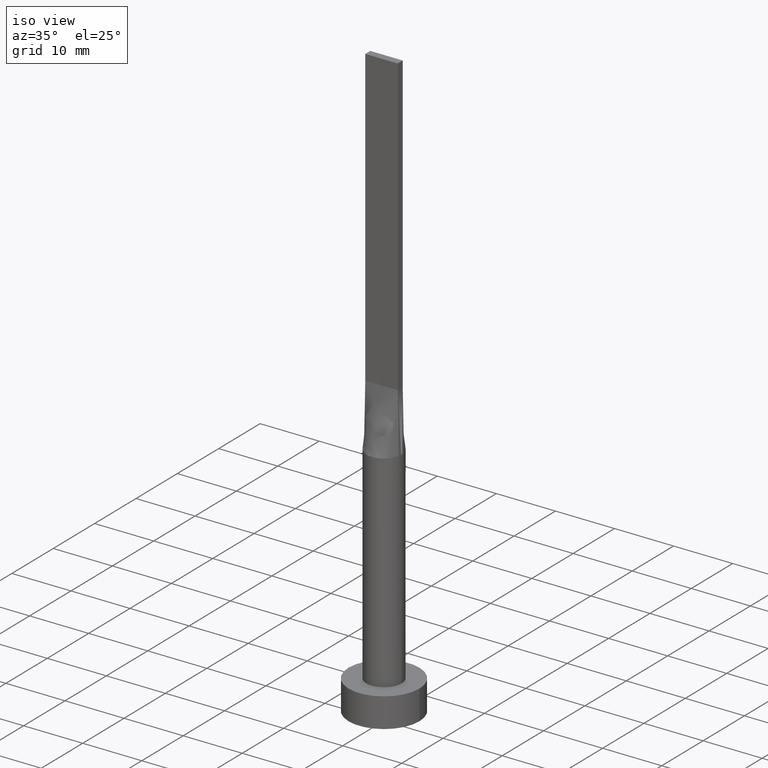
[diagram: clean part render]
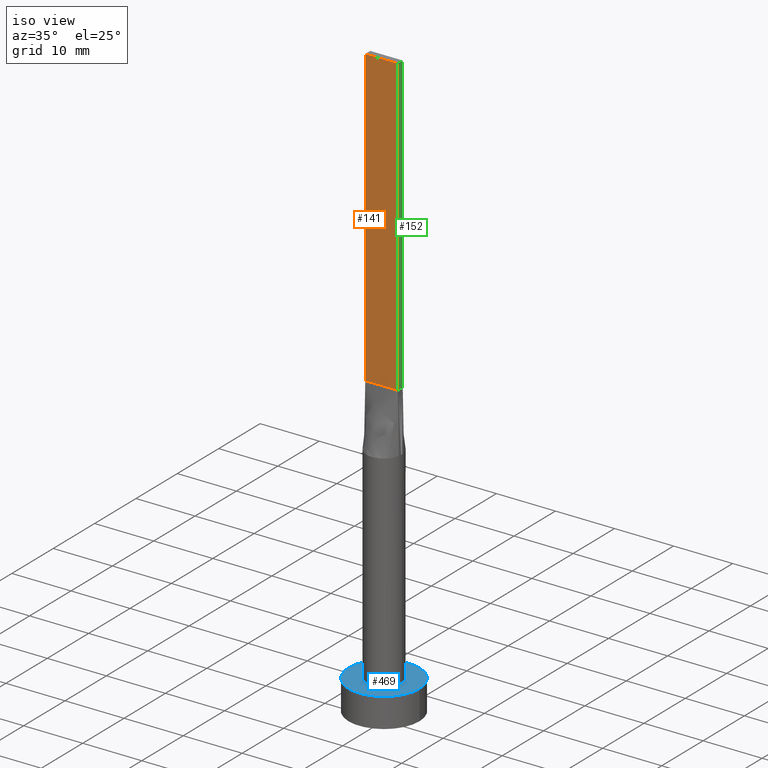
[diagram: same view with three faces highlighted in distinct colors, each labeled with its STEP entity id]
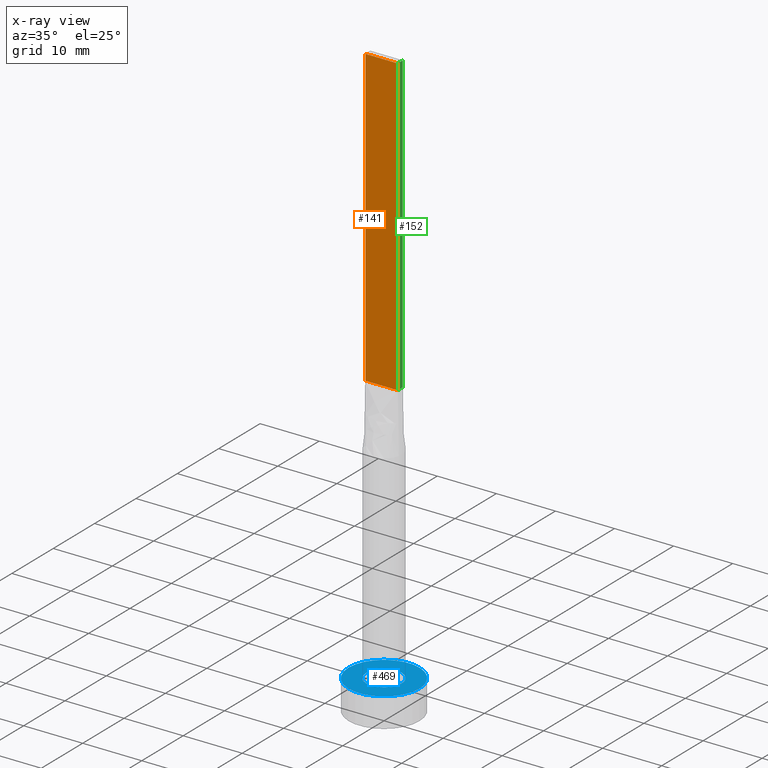
[diagram: x-ray of the same camera — body ghosted, the three highlighted faces saturated]
A machine part, iso view with three faces highlighted in distinct colors.
The next image is the same camera in x-ray (body ghosted, the three faces saturated) — at least one of them is partly hidden behind the body in this view.
Their STEP definitions:

[orange] entity #141 — the highlighted planar face has unit normal (0, 1, -0).
#9 = ORIENTED_EDGE ( 'NONE', *, *, #275, .T. ) ;
#23 = DIRECTION ( 'NONE',  ( -0.000000000000000000, -0.000000000000000000, -1.000000000000000000 ) ) ;
#47 = CARTESIAN_POINT ( 'NONE',  ( -2.750000000000000000, -0.5999999999999994227, 50.00000000000000000 ) ) ;
#49 = ORIENTED_EDGE ( 'NONE', *, *, #268, .F. ) ;
#63 = CARTESIAN_POINT ( 'NONE',  ( -2.750000000000000000, -0.5999999999999994227, 100.0000000000000000 ) ) ;
#119 = LINE ( 'NONE', #530, #510 ) ;
#124 = EDGE_CURVE ( 'NONE', #539, #162, #393, .T. ) ;
#139 = AXIS2_PLACEMENT_3D ( 'NONE', #170, #490, #306 ) ;
#141 = ADVANCED_FACE ( 'NONE', ( #261 ), #399, .F. ) ;
#162 = VERTEX_POINT ( 'NONE', #447 ) ;
#170 = CARTESIAN_POINT ( 'NONE',  ( -2.750000000000000000, -0.5999999999999994227, 100.0000000000000000 ) ) ;
#259 = VECTOR ( 'NONE', #357, 1000.000000000000000 ) ;
#261 = FACE_OUTER_BOUND ( 'NONE', #542, .T. ) ;
#264 = CARTESIAN_POINT ( 'NONE',  ( 2.750000000000000000, -0.5999999999999997558, 100.0000000000000000 ) ) ;
#268 = EDGE_CURVE ( 'NONE', #452, #539, #347, .T. ) ;
#275 = EDGE_CURVE ( 'NONE', #314, #162, #119, .T. ) ;
#289 = ORIENTED_EDGE ( 'NONE', *, *, #518, .T. ) ;
#299 = DIRECTION ( 'NONE',  ( 1.000000000000000000, -5.913830031739115543E-17, 0.000000000000000000 ) ) ;
#306 = DIRECTION ( 'NONE',  ( -1.000000000000000000, 5.913830031739115543E-17, 0.000000000000000000 ) ) ;
#314 = VERTEX_POINT ( 'NONE', #47 ) ;
#324 = ORIENTED_EDGE ( 'NONE', *, *, #124, .F. ) ;
#330 = LINE ( 'NONE', #429, #431 ) ;
#347 = LINE ( 'NONE', #451, #259 ) ;
#357 = DIRECTION ( 'NONE',  ( 1.000000000000000000, -5.913830031739115543E-17, 0.000000000000000000 ) ) ;
#393 = LINE ( 'NONE', #264, #491 ) ;
#399 = PLANE ( 'NONE',  #139 ) ;
#429 = CARTESIAN_POINT ( 'NONE',  ( -2.750000000000000000, -0.5999999999999994227, 100.0000000000000000 ) ) ;
#431 = VECTOR ( 'NONE', #23, 1000.000000000000000 ) ;
#447 = CARTESIAN_POINT ( 'NONE',  ( 2.750000000000000000, -0.5999999999999997558, 50.00000000000000000 ) ) ;
#450 = CARTESIAN_POINT ( 'NONE',  ( 2.750000000000000000, -0.5999999999999997558, 100.0000000000000000 ) ) ;
#451 = CARTESIAN_POINT ( 'NONE',  ( -2.750000000000000000, -0.5999999999999994227, 100.0000000000000000 ) ) ;
#452 = VERTEX_POINT ( 'NONE', #63 ) ;
#490 = DIRECTION ( 'NONE',  ( 5.913830031739115543E-17, 1.000000000000000000, -0.000000000000000000 ) ) ;
#491 = VECTOR ( 'NONE', #574, 1000.000000000000000 ) ;
#510 = VECTOR ( 'NONE', #299, 1000.000000000000000 ) ;
#518 = EDGE_CURVE ( 'NONE', #452, #314, #330, .T. ) ;
#530 = CARTESIAN_POINT ( 'NONE',  ( -2.750000000000000000, -0.5999999999999994227, 50.00000000000000000 ) ) ;
#539 = VERTEX_POINT ( 'NONE', #450 ) ;
#542 = EDGE_LOOP ( 'NONE', ( #9, #324, #49, #289 ) ) ;
#574 = DIRECTION ( 'NONE',  ( -0.000000000000000000, -0.000000000000000000, -1.000000000000000000 ) ) ;

[blue] entity #469 — the highlighted planar face has unit normal (0, 0, 1).
#3 = CARTESIAN_POINT ( 'NONE',  ( -6.000000000000000888, 0.000000000000000000, 5.000000000000000000 ) ) ;
#6 = DIRECTION ( 'NONE',  ( 0.000000000000000000, 0.000000000000000000, 1.000000000000000000 ) ) ;
#12 = ORIENTED_EDGE ( 'NONE', *, *, #442, .F. ) ;
#22 = AXIS2_PLACEMENT_3D ( 'NONE', #544, #96, #402 ) ;
#31 = ORIENTED_EDGE ( 'NONE', *, *, #325, .T. ) ;
#55 = AXIS2_PLACEMENT_3D ( 'NONE', #246, #558, #334 ) ;
#57 = CARTESIAN_POINT ( 'NONE',  ( 0.000000000000000000, 0.000000000000000000, 5.000000000000000000 ) ) ;
#76 = DIRECTION ( 'NONE',  ( 1.000000000000000000, 0.000000000000000000, 0.000000000000000000 ) ) ;
#96 = DIRECTION ( 'NONE',  ( 0.000000000000000000, 0.000000000000000000, 1.000000000000000000 ) ) ;
#105 = DIRECTION ( 'NONE',  ( 1.000000000000000000, 0.000000000000000000, 0.000000000000000000 ) ) ;
#115 = ORIENTED_EDGE ( 'NONE', *, *, #332, .F. ) ;
#129 = CARTESIAN_POINT ( 'NONE',  ( -3.000000000000000444, 0.000000000000000000, 5.000000000000000000 ) ) ;
#145 = AXIS2_PLACEMENT_3D ( 'NONE', #198, #157, #105 ) ;
#148 = FACE_OUTER_BOUND ( 'NONE', #156, .T. ) ;
#153 = PLANE ( 'NONE',  #55 ) ;
#156 = EDGE_LOOP ( 'NONE', ( #31, #417 ) ) ;
#157 = DIRECTION ( 'NONE',  ( 0.000000000000000000, 0.000000000000000000, 1.000000000000000000 ) ) ;
#173 = AXIS2_PLACEMENT_3D ( 'NONE', #252, #446, #76 ) ;
#198 = CARTESIAN_POINT ( 'NONE',  ( 0.000000000000000000, 0.000000000000000000, 5.000000000000000000 ) ) ;
#246 = CARTESIAN_POINT ( 'NONE',  ( 0.000000000000000000, 0.000000000000000000, 5.000000000000000000 ) ) ;
#250 = CIRCLE ( 'NONE', #145, 3.000000000000000444 ) ;
#252 = CARTESIAN_POINT ( 'NONE',  ( 0.000000000000000000, 0.000000000000000000, 5.000000000000000000 ) ) ;
#271 = CIRCLE ( 'NONE', #333, 3.000000000000000444 ) ;
#281 = EDGE_LOOP ( 'NONE', ( #12, #115 ) ) ;
#317 = VERTEX_POINT ( 'NONE', #507 ) ;
#325 = EDGE_CURVE ( 'NONE', #418, #317, #407, .T. ) ;
#332 = EDGE_CURVE ( 'NONE', #475, #579, #271, .T. ) ;
#333 = AXIS2_PLACEMENT_3D ( 'NONE', #57, #6, #408 ) ;
#334 = DIRECTION ( 'NONE',  ( 1.000000000000000000, 0.000000000000000000, -0.000000000000000000 ) ) ;
#364 = CIRCLE ( 'NONE', #173, 6.000000000000000888 ) ;
#402 = DIRECTION ( 'NONE',  ( 1.000000000000000000, 0.000000000000000000, 0.000000000000000000 ) ) ;
#407 = CIRCLE ( 'NONE', #22, 6.000000000000000888 ) ;
#408 = DIRECTION ( 'NONE',  ( 1.000000000000000000, 0.000000000000000000, 0.000000000000000000 ) ) ;
#417 = ORIENTED_EDGE ( 'NONE', *, *, #571, .T. ) ;
#418 = VERTEX_POINT ( 'NONE', #3 ) ;
#442 = EDGE_CURVE ( 'NONE', #579, #475, #250, .T. ) ;
#446 = DIRECTION ( 'NONE',  ( 0.000000000000000000, 0.000000000000000000, 1.000000000000000000 ) ) ;
#469 = ADVANCED_FACE ( 'NONE', ( #560, #148 ), #153, .T. ) ;
#475 = VERTEX_POINT ( 'NONE', #516 ) ;
#507 = CARTESIAN_POINT ( 'NONE',  ( 6.000000000000000888, 7.347880794884120722E-16, 5.000000000000000000 ) ) ;
#516 = CARTESIAN_POINT ( 'NONE',  ( 3.000000000000000444, 3.673940397442060361E-16, 5.000000000000000000 ) ) ;
#544 = CARTESIAN_POINT ( 'NONE',  ( 0.000000000000000000, 0.000000000000000000, 5.000000000000000000 ) ) ;
#558 = DIRECTION ( 'NONE',  ( 0.000000000000000000, 0.000000000000000000, 1.000000000000000000 ) ) ;
#560 = FACE_BOUND ( 'NONE', #281, .T. ) ;
#571 = EDGE_CURVE ( 'NONE', #317, #418, #364, .T. ) ;
#579 = VERTEX_POINT ( 'NONE', #129 ) ;

[green] entity #152 — the highlighted planar face has unit normal (-1, 0, 0).
#43 = DIRECTION ( 'NONE',  ( 0.000000000000000000, 0.000000000000000000, 1.000000000000000000 ) ) ;
#82 = CARTESIAN_POINT ( 'NONE',  ( 2.750000000000000000, 0.6000000000000001998, 100.0000000000000000 ) ) ;
#93 = ORIENTED_EDGE ( 'NONE', *, *, #177, .F. ) ;
#99 = EDGE_LOOP ( 'NONE', ( #185, #93, #428, #337 ) ) ;
#107 = VECTOR ( 'NONE', #165, 1000.000000000000000 ) ;
#124 = EDGE_CURVE ( 'NONE', #539, #162, #393, .T. ) ;
#138 = CARTESIAN_POINT ( 'NONE',  ( 2.750000000000000000, 0.6000000000000001998, 50.00000000000000000 ) ) ;
#152 = ADVANCED_FACE ( 'NONE', ( #349 ), #532, .F. ) ;
#162 = VERTEX_POINT ( 'NONE', #447 ) ;
#165 = DIRECTION ( 'NONE',  ( 0.000000000000000000, 1.000000000000000000, 0.000000000000000000 ) ) ;
#167 = CARTESIAN_POINT ( 'NONE',  ( 2.750000000000000000, -0.5999999999999997558, 100.0000000000000000 ) ) ;
#177 = EDGE_CURVE ( 'NONE', #547, #301, #214, .T. ) ;
#185 = ORIENTED_EDGE ( 'NONE', *, *, #578, .T. ) ;
#207 = CARTESIAN_POINT ( 'NONE',  ( 2.750000000000000000, -0.5999999999999997558, 100.0000000000000000 ) ) ;
#214 = LINE ( 'NONE', #82, #311 ) ;
#217 = LINE ( 'NONE', #167, #107 ) ;
#220 = EDGE_CURVE ( 'NONE', #539, #547, #217, .T. ) ;
#255 = LINE ( 'NONE', #576, #511 ) ;
#264 = CARTESIAN_POINT ( 'NONE',  ( 2.750000000000000000, -0.5999999999999997558, 100.0000000000000000 ) ) ;
#301 = VERTEX_POINT ( 'NONE', #138 ) ;
#311 = VECTOR ( 'NONE', #443, 1000.000000000000000 ) ;
#337 = ORIENTED_EDGE ( 'NONE', *, *, #124, .T. ) ;
#349 = FACE_OUTER_BOUND ( 'NONE', #99, .T. ) ;
#352 = CARTESIAN_POINT ( 'NONE',  ( 2.750000000000000000, 0.6000000000000001998, 100.0000000000000000 ) ) ;
#383 = DIRECTION ( 'NONE',  ( -0.000000000000000000, 1.000000000000000000, -0.000000000000000000 ) ) ;
#393 = LINE ( 'NONE', #264, #491 ) ;
#428 = ORIENTED_EDGE ( 'NONE', *, *, #220, .F. ) ;
#443 = DIRECTION ( 'NONE',  ( -0.000000000000000000, -0.000000000000000000, -1.000000000000000000 ) ) ;
#447 = CARTESIAN_POINT ( 'NONE',  ( 2.750000000000000000, -0.5999999999999997558, 50.00000000000000000 ) ) ;
#450 = CARTESIAN_POINT ( 'NONE',  ( 2.750000000000000000, -0.5999999999999997558, 100.0000000000000000 ) ) ;
#471 = AXIS2_PLACEMENT_3D ( 'NONE', #207, #488, #43 ) ;
#488 = DIRECTION ( 'NONE',  ( -1.000000000000000000, 0.000000000000000000, 0.000000000000000000 ) ) ;
#491 = VECTOR ( 'NONE', #574, 1000.000000000000000 ) ;
#511 = VECTOR ( 'NONE', #383, 1000.000000000000000 ) ;
#532 = PLANE ( 'NONE',  #471 ) ;
#539 = VERTEX_POINT ( 'NONE', #450 ) ;
#547 = VERTEX_POINT ( 'NONE', #352 ) ;
#574 = DIRECTION ( 'NONE',  ( -0.000000000000000000, -0.000000000000000000, -1.000000000000000000 ) ) ;
#576 = CARTESIAN_POINT ( 'NONE',  ( 2.750000000000000000, 0.6000000000000001998, 50.00000000000000000 ) ) ;
#578 = EDGE_CURVE ( 'NONE', #162, #301, #255, .T. ) ;